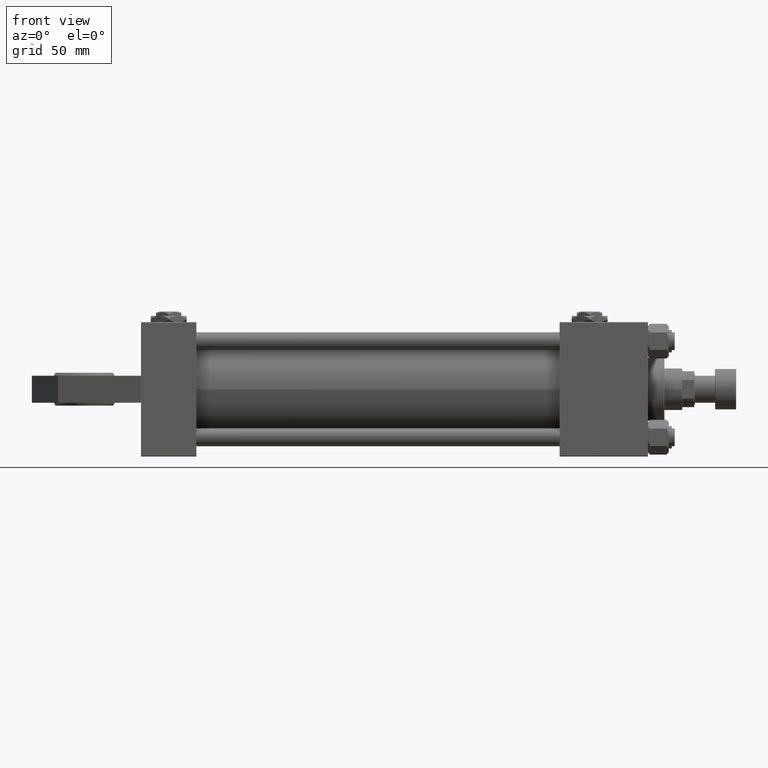
[diagram: clean part render]
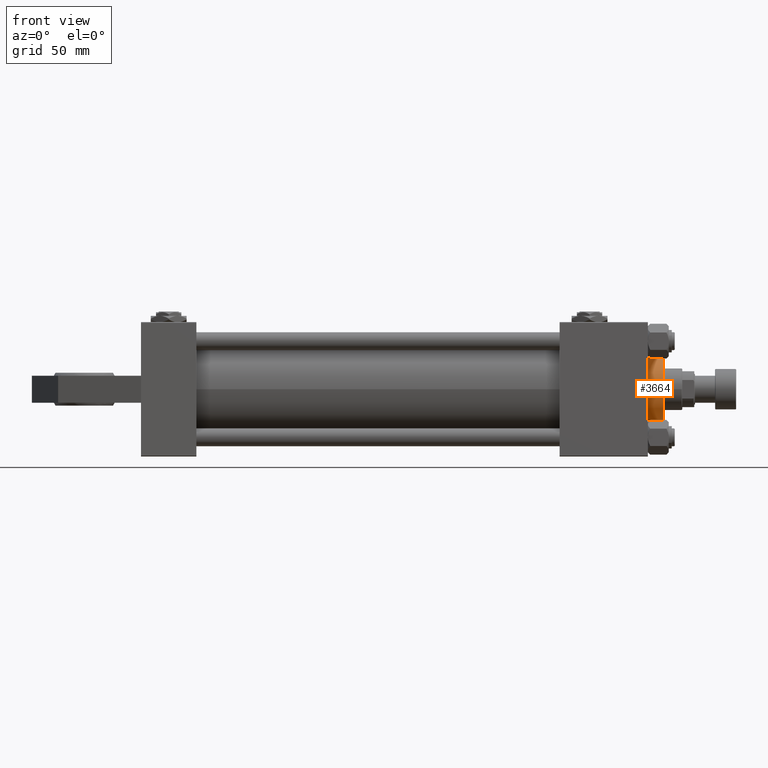
[diagram: same view with one face highlighted and labeled with its STEP entity id]
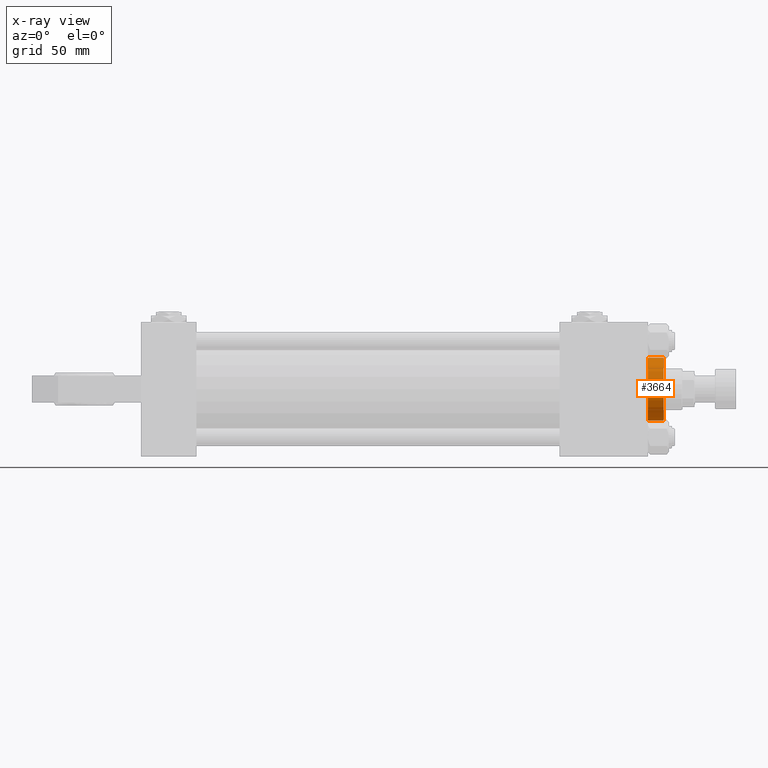
[diagram: x-ray of the same camera — body ghosted, the highlighted face saturated]
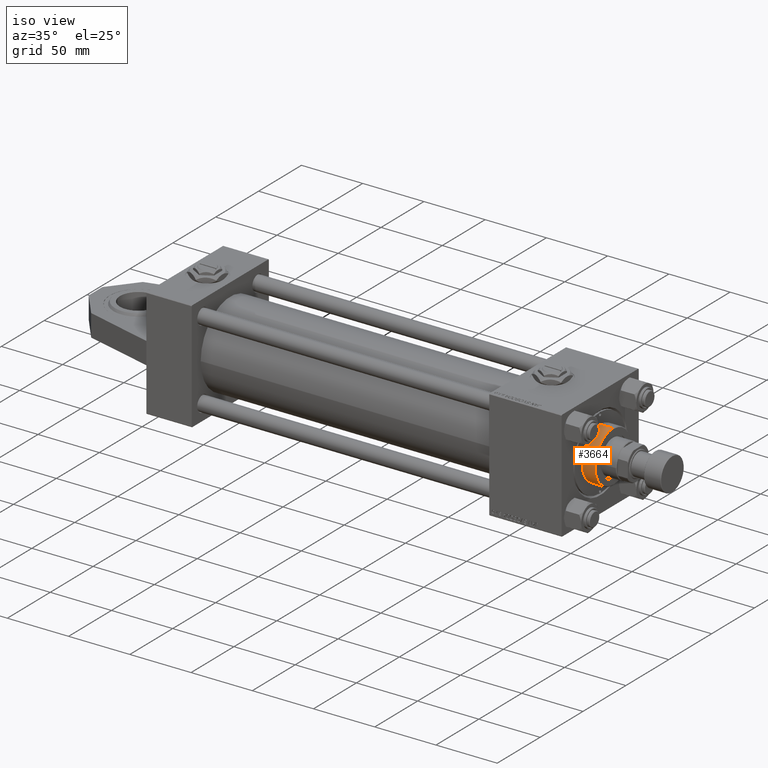
[diagram: same view with one face highlighted and labeled with its STEP entity id]
A machine part, front view. The second image highlights one B-rep face of the part: STEP entity #3664.
The next image is the same camera in x-ray: the body ghosted, the highlighted face saturated — about 0% of this face is hidden behind the body in this view.
A second angle (iso view) of the same face is appended — the face is thin or edge-on in the first view.
In plain terms, the highlighted cylindrical surface (edge-blend (fillet) strip) has radius 21 mm, axis along (-1, -0, 0).
Its self-contained STEP definition (entity closure, byte-faithful):
#993 = AXIS2_PLACEMENT_3D ( 'NONE', #46299, #46553, #38299 ) ;
#3157 = DIRECTION ( 'NONE',  ( 0.000000000000000000, 0.000000000000000000, -1.000000000000000000 ) ) ;
#3664 = ADVANCED_FACE ( 'NONE', ( #34028 ), #50303, .T. ) ;
#3819 = DIRECTION ( 'NONE',  ( -0.000000000000000000, -0.000000000000000000, -1.000000000000000000 ) ) ;
#4862 = ORIENTED_EDGE ( 'NONE', *, *, #5481, .T. ) ;
#5481 = EDGE_CURVE ( 'NONE', #41527, #43092, #16057, .T. ) ;
#5664 = EDGE_LOOP ( 'NONE', ( #12137, #44821, #4862, #20316 ) ) ;
#7427 = DIRECTION ( 'NONE',  ( 1.000000000000000000, 0.000000000000000000, 0.000000000000000000 ) ) ;
#8611 = CIRCLE ( 'NONE', #10293, 21.00000000000000000 ) ;
#10293 = AXIS2_PLACEMENT_3D ( 'NONE', #12660, #3157, #7427 ) ;
#11838 = VECTOR ( 'NONE', #11928, 1000.000000000000000 ) ;
#11928 = DIRECTION ( 'NONE',  ( -0.000000000000000000, -0.000000000000000000, -1.000000000000000000 ) ) ;
#12137 = ORIENTED_EDGE ( 'NONE', *, *, #28620, .F. ) ;
#12660 = CARTESIAN_POINT ( 'NONE',  ( 0.000000000000000000, 0.000000000000000000, 37.19999999999999574 ) ) ;
#13150 = VERTEX_POINT ( 'NONE', #21402 ) ;
#16057 = LINE ( 'NONE', #23790, #38478 ) ;
#16752 = CARTESIAN_POINT ( 'NONE',  ( 21.00000000000000000, 2.571758278209441661E-15, 26.69999999999999929 ) ) ;
#16962 = CARTESIAN_POINT ( 'NONE',  ( -21.00000000000000000, 0.000000000000000000, 26.69999999999999929 ) ) ;
#20316 = ORIENTED_EDGE ( 'NONE', *, *, #52377, .T. ) ;
#21402 = CARTESIAN_POINT ( 'NONE',  ( 21.00000000000000000, 2.571758278209441661E-15, 37.19999999999999574 ) ) ;
#23790 = CARTESIAN_POINT ( 'NONE',  ( -21.00000000000000000, 0.000000000000000000, 37.69999999999999574 ) ) ;
#24875 = AXIS2_PLACEMENT_3D ( 'NONE', #30516, #25751, #39035 ) ;
#25751 = DIRECTION ( 'NONE',  ( 0.000000000000000000, 0.000000000000000000, 1.000000000000000000 ) ) ;
#28443 = CARTESIAN_POINT ( 'NONE',  ( 21.00000000000000000, 2.571758278209441661E-15, 37.69999999999999574 ) ) ;
#28620 = EDGE_CURVE ( 'NONE', #13150, #48108, #40689, .T. ) ;
#30516 = CARTESIAN_POINT ( 'NONE',  ( 0.000000000000000000, 0.000000000000000000, 26.69999999999999929 ) ) ;
#34028 = FACE_OUTER_BOUND ( 'NONE', #5664, .T. ) ;
#38299 = DIRECTION ( 'NONE',  ( -1.000000000000000000, 0.000000000000000000, 0.000000000000000000 ) ) ;
#38478 = VECTOR ( 'NONE', #3819, 1000.000000000000000 ) ;
#38631 = CARTESIAN_POINT ( 'NONE',  ( -21.00000000000000000, 0.000000000000000000, 37.19999999999999574 ) ) ;
#39035 = DIRECTION ( 'NONE',  ( 1.000000000000000000, 0.000000000000000000, 0.000000000000000000 ) ) ;
#40689 = LINE ( 'NONE', #28443, #11838 ) ;
#41035 = CIRCLE ( 'NONE', #24875, 21.00000000000000000 ) ;
#41527 = VERTEX_POINT ( 'NONE', #38631 ) ;
#43092 = VERTEX_POINT ( 'NONE', #16962 ) ;
#44821 = ORIENTED_EDGE ( 'NONE', *, *, #50293, .T. ) ;
#46299 = CARTESIAN_POINT ( 'NONE',  ( 0.000000000000000000, 0.000000000000000000, 37.69999999999999574 ) ) ;
#46553 = DIRECTION ( 'NONE',  ( -0.000000000000000000, -0.000000000000000000, -1.000000000000000000 ) ) ;
#48108 = VERTEX_POINT ( 'NONE', #16752 ) ;
#50293 = EDGE_CURVE ( 'NONE', #13150, #41527, #8611, .T. ) ;
#50303 = CYLINDRICAL_SURFACE ( 'NONE', #993, 21.00000000000000000 ) ;
#52377 = EDGE_CURVE ( 'NONE', #43092, #48108, #41035, .T. ) ;